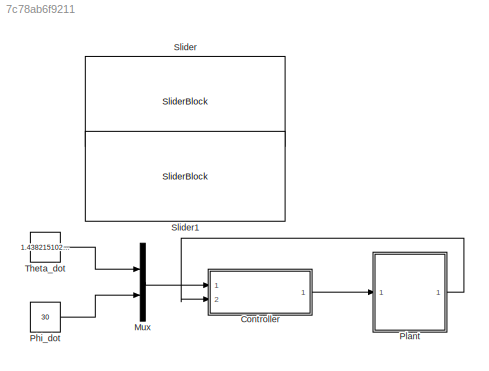
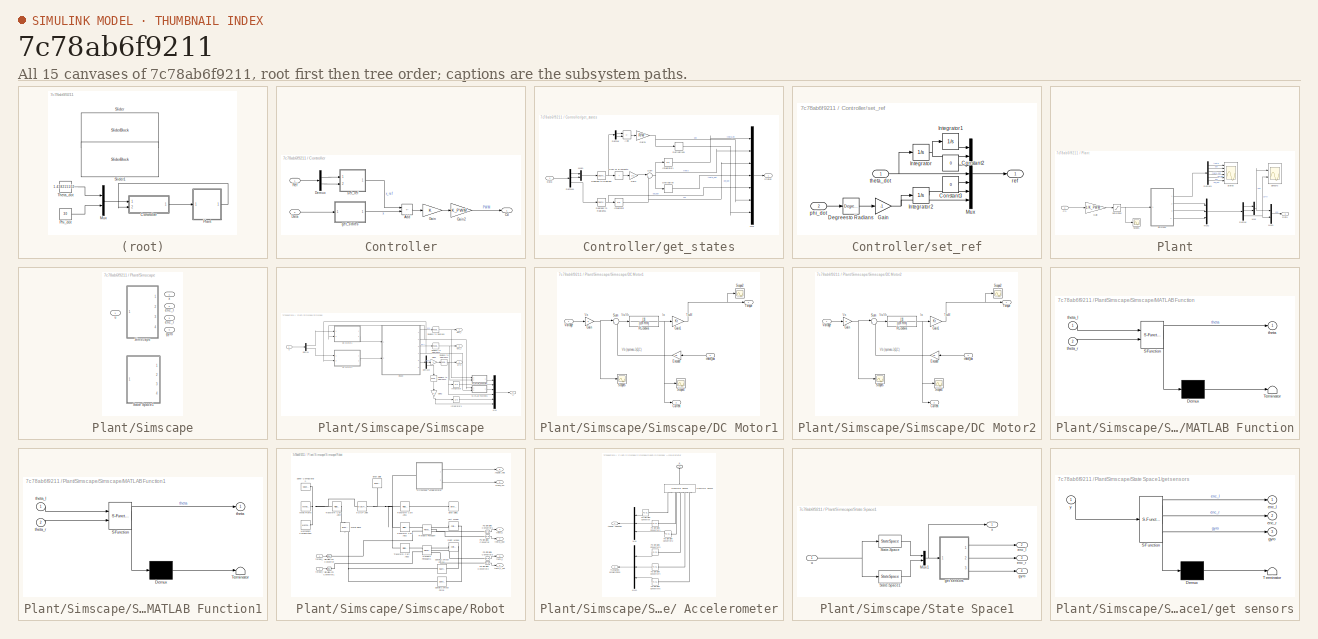
[diagram: thumbnail index - all 15 canvases of the model, root first then tree order]
MODEL slx_7c78ab6f9211
KIND model
CONFIG AbsTol = auto
CONFIG EnableMultiTasking = off
CONFIG FixedStep = 1e-3
CONFIG InitFcn = init\npreload
CONFIG MaxStep = auto
CONFIG MinStep = auto
CONFIG PreLoadFcn = preload
CONFIG RelTol = 1e-3
CONFIG SampleTimeConstraint = Unconstrained
CONFIG SolverName = ode45
CONFIG StartTime = 0.0
CONFIG StopTime = 30
BLOCK [SubSystem] Controller
  Ports = [2, 1]
  RequestExecContextInheritance = off
BLOCK [Sum] Controller/Add
  IconShape = rectangular
  Inputs = +-
  Ports = [2, 1]
BLOCK [Outport] Controller/Ctl
  VectorParamsAs1DForOutWhenUnconnected = off
BLOCK [Inport] Controller/Data
  Port = 2
BLOCK [Demux] Controller/Demux
  Outputs = 2
  Ports = [1, 2]
BLOCK [Gain] Controller/Gain
  Gain = K
  Multiplication = Matrix(K*u)
BLOCK [Gain] Controller/Gain2
  Gain = K_PWM
BLOCK [Inport] Controller/Ref
BLOCK [SubSystem] Controller/get_states
  Ports = [1, 1]
  RequestExecContextInheritance = off
BLOCK [Sum] Controller/get_states/Add
  IconShape = rectangular
  Inputs = -+
  Ports = [2, 1]
BLOCK [Inport] Controller/get_states/Data
BLOCK [Reference] Controller/get_states/Degrees to Radians  REF=simulink_extras/Transformations/Degrees to
Radians
  Ports = [1, 1]
  SourceBlock = simulink_extras/Transformations/Degrees to\nRadians
  SourceProductBaseCode = SL
  SourceType = DegreesToRadians
BLOCK [Reference] Controller/get_states/Degrees to Radians1  REF=simulink_extras/Transformations/Degrees to
Radians
  Ports = [1, 1]
  SourceBlock = simulink_extras/Transformations/Degrees to\nRadians
  SourceProductBaseCode = SL
  SourceType = DegreesToRadians
BLOCK [Demux] Controller/get_states/Demux
  Outputs = 2
  Ports = [1, 2]
BLOCK [Demux] Controller/get_states/Demux1
  Outputs = 3
  Ports = [1, 3]
BLOCK [Derivative] Controller/get_states/Derivative
BLOCK [Derivative] Controller/get_states/Derivative1
BLOCK [Gain] Controller/get_states/Gain
  Gain = 1/2
BLOCK [Gain] Controller/get_states/Gain1
  Gain = R/W
BLOCK [Integrator] Controller/get_states/Integrator
  Ports = [1, 1]
BLOCK [Integrator] Controller/get_states/Integrator1
  Ports = [1, 1]
BLOCK [Mux] Controller/get_states/Mux
  DisplayOption = bar
  Inputs = 7
  Ports = [7, 1]
BLOCK [Mux] Controller/get_states/Mux1
  DisplayOption = bar
  Inputs = 2
  Ports = [2, 1]
BLOCK [Outport] Controller/get_states/States
  VectorParamsAs1DForOutWhenUnconnected = off
BLOCK [Sum] Controller/get_states/Sum
  Inputs = |++
  Ports = [2, 1]
BLOCK [Sum] Controller/get_states/Sum of Elements
  IconShape = rectangular
  Inputs = +
  Ports = [1, 1]
BLOCK [SubSystem] Controller/set_ref
  Ports = [2, 1]
  RequestExecContextInheritance = off
BLOCK [Constant] Controller/set_ref/Constant2
  Value = 0
BLOCK [Constant] Controller/set_ref/Constant3
  Value = 0
BLOCK [Reference] Controller/set_ref/Degrees to Radians  REF=simulink_extras/Transformations/Degrees to
Radians
  Ports = [1, 1]
  SourceBlock = simulink_extras/Transformations/Degrees to\nRadians
  SourceProductBaseCode = SL
  SourceType = DegreesToRadians
BLOCK [Gain] Controller/set_ref/Gain
  Gain = -1
BLOCK [Integrator] Controller/set_ref/Integrator
  Ports = [1, 1]
BLOCK [Integrator] Controller/set_ref/Integrator1
  Ports = [1, 1]
BLOCK [Integrator] Controller/set_ref/Integrator2
  Ports = [1, 1]
BLOCK [Mux] Controller/set_ref/Mux
  DisplayOption = bar
  Inputs = 7
  Ports = [7, 1]
BLOCK [Inport] Controller/set_ref/phi_dot
  Port = 2
BLOCK [Outport] Controller/set_ref/ref
  VectorParamsAs1DForOutWhenUnconnected = off
BLOCK [Inport] Controller/set_ref/theta_dot
BLOCK [Mux] Mux
  DisplayOption = bar
  Inputs = 2
  Ports = [2, 1]
BLOCK [Constant] Phi_dot
  Value = 30
BLOCK [SubSystem] Plant
  Ports = [1, 1]
  RequestExecContextInheritance = off
BLOCK [Inport] Plant/Ctl
BLOCK [Outport] Plant/Data
BLOCK [Demux] Plant/Demux
  Outputs = 3
  Ports = [1, 3]
BLOCK [Demux] Plant/Demux1
  Outputs = 6
  Ports = [1, 6]
BLOCK [Gain] Plant/Gain
  Gain = 1/K_PWM
BLOCK [Mux] Plant/Mux
  DisplayOption = bar
  Inputs = 2
  Ports = [2, 1]
BLOCK [Mux] Plant/Mux1
  DisplayOption = bar
  Inputs = 2
  Ports = [2, 1]
BLOCK [Mux] Plant/Mux2
  DisplayOption = bar
  Inputs = 3
  Ports = [3, 1]
BLOCK [Saturate] Plant/Saturation
  LowerLimit = -80
  UpperLimit = 80
BLOCK [Scope] Plant/Scope1
  Floating = off
  NumInputPorts = 1
  Ports = [1]
  ScopeSpecificationString = Simulink.scopes.TimeScopeBlockCfg('CurrentConfiguration', extmgr.ConfigurationSet(extmgr.Configuration('Core','General UI',true),extmgr.Configuration('Core','Source UI',true),extmgr.Configuration('Sources','WiredSimulink',true,'DataLoggingVariableName','ScopeData3'),extmgr.Configuration('Visuals','Time Domain',true,'SerializedDisplays',{struct('MinYLimReal','-10.25485','MaxYLimReal','7.55341','YLa...<+1415ch>
BLOCK [Scope] Plant/Sensors
  Floating = off
  NumInputPorts = 2
  Ports = [2]
  ScopeSpecificationString = Simulink.scopes.TimeScopeBlockCfg('CurrentConfiguration', extmgr.ConfigurationSet(extmgr.Configuration('Core','General UI',true),extmgr.Configuration('Core','Source UI',true),extmgr.Configuration('Sources','WiredSimulink',true,'DataLoggingVariableName','ScopeData1'),extmgr.Configuration('Visuals','Time Domain',true,'SerializedDisplays',{struct('MinYLimReal','-8204.90971','MaxYLimReal','73844.18735...<+2010ch>
BLOCK [SubSystem] Plant/Simscape
  Ports = [1, 4]
  RequestExecContextInheritance = off
  Variant = on
  VariantControl = Choice
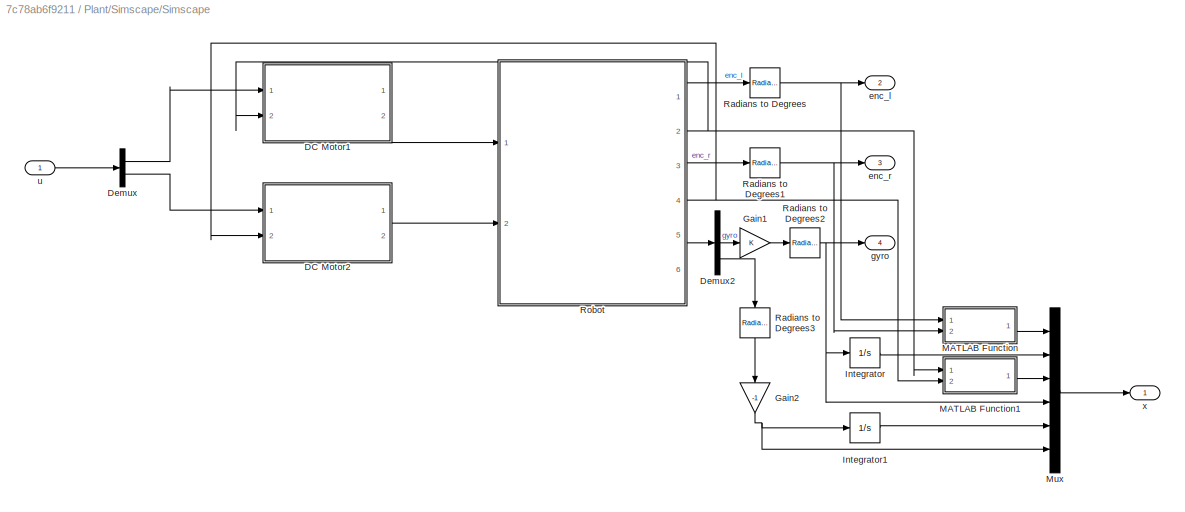
BLOCK [SubSystem] Plant/Simscape/Simscape
  Ports = [1, 4]
  RequestExecContextInheritance = off
  VariantControl = (default)
BLOCK [SubSystem] Plant/Simscape/Simscape/DC Motor1
  Ports = [2, 2]
  RequestExecContextInheritance = off
BLOCK [Outport] Plant/Simscape/Simscape/DC Motor1/Current
  Port = 2
BLOCK [Gain] Plant/Simscape/Simscape/DC Motor1/Encoder
  Gain = Kb
BLOCK [Gain] Plant/Simscape/Simscape/DC Motor1/Gain
BLOCK [Gain] Plant/Simscape/Simscape/DC Motor1/Gain1
  Gain = Kt
BLOCK [TransferFcn] Plant/Simscape/Simscape/DC Motor1/RL-схема
  Denominator = [Lm Rm]
BLOCK [Scope] Plant/Simscape/Simscape/DC Motor1/Scope2
  Floating = off
  NumInputPorts = 1
  Ports = [1]
  ScopeSpecificationString = Simulink.scopes.TimeScopeBlockCfg('CurrentConfiguration', extmgr.ConfigurationSet(extmgr.Configuration('Core','General UI',true),extmgr.Configuration('Core','Source UI',true),extmgr.Configuration('Sources','WiredSimulink',true,'DataLoggingVariableName','ScopeData1','DataLoggingSaveFormat','StructureWithTime','DataLoggingDecimation','1','DataLoggingDecimateData',true),extmgr.Configuration('Visuals'...<+1665ch>
BLOCK [Scope] Plant/Simscape/Simscape/DC Motor1/Scope4
  Floating = off
  NumInputPorts = 1
  Ports = [1]
  ScopeSpecificationString = Simulink.scopes.TimeScopeBlockCfg('CurrentConfiguration', extmgr.ConfigurationSet(extmgr.Configuration('Core','General UI',true),extmgr.Configuration('Core','Source UI',true),extmgr.Configuration('Sources','WiredSimulink',true,'DataLoggingVariableName','ScopeData5','DataLoggingSaveFormat','StructureWithTime','DataLoggingDecimation','1','DataLoggingDecimateData',true),extmgr.Configuration('Visuals'...<+1680ch>
BLOCK [Scope] Plant/Simscape/Simscape/DC Motor1/Scope5
  Floating = off
  NumInputPorts = 1
  Ports = [1]
  ScopeSpecificationString = Simulink.scopes.TimeScopeBlockCfg('CurrentConfiguration', extmgr.ConfigurationSet(extmgr.Configuration('Core','General UI',true),extmgr.Configuration('Core','Source UI',true),extmgr.Configuration('Sources','WiredSimulink',true,'DataLoggingVariableName','ScopeData6','DataLoggingSaveFormat','StructureWithTime','DataLoggingDecimation','1','DataLoggingDecimateData',true),extmgr.Configuration('Visuals'...<+878ch>
BLOCK [Sum] Plant/Simscape/Simscape/DC Motor1/Sum
  Inputs = |+-
  Ports = [2, 1]
BLOCK [Outport] Plant/Simscape/Simscape/DC Motor1/Torque
BLOCK [Inport] Plant/Simscape/Simscape/DC Motor1/Voltage
BLOCK [Inport] Plant/Simscape/Simscape/DC Motor1/theta_dot
  Port = 2
BLOCK [SubSystem] Plant/Simscape/Simscape/DC Motor2
  Ports = [2, 2]
  RequestExecContextInheritance = off
BLOCK [Outport] Plant/Simscape/Simscape/DC Motor2/Current
  Port = 2
BLOCK [Gain] Plant/Simscape/Simscape/DC Motor2/Encoder
  Gain = Kb
BLOCK [Gain] Plant/Simscape/Simscape/DC Motor2/Gain
BLOCK [Gain] Plant/Simscape/Simscape/DC Motor2/Gain1
  Gain = Kt
BLOCK [TransferFcn] Plant/Simscape/Simscape/DC Motor2/RL-схема
  Denominator = [Lm Rm]
BLOCK [Scope] Plant/Simscape/Simscape/DC Motor2/Scope2
  Floating = off
  NumInputPorts = 1
  Ports = [1]
  ScopeSpecificationString = Simulink.scopes.TimeScopeBlockCfg('CurrentConfiguration', extmgr.ConfigurationSet(extmgr.Configuration('Core','General UI',true),extmgr.Configuration('Core','Source UI',true),extmgr.Configuration('Sources','WiredSimulink',true,'DataLoggingVariableName','ScopeData1','DataLoggingSaveFormat','StructureWithTime','DataLoggingDecimation','1','DataLoggingDecimateData',true),extmgr.Configuration('Visuals'...<+1665ch>
BLOCK [Scope] Plant/Simscape/Simscape/DC Motor2/Scope4
  Floating = off
  NumInputPorts = 1
  Ports = [1]
  ScopeSpecificationString = Simulink.scopes.TimeScopeBlockCfg('CurrentConfiguration', extmgr.ConfigurationSet(extmgr.Configuration('Core','General UI',true),extmgr.Configuration('Core','Source UI',true),extmgr.Configuration('Sources','WiredSimulink',true,'DataLoggingVariableName','ScopeData5','DataLoggingSaveFormat','StructureWithTime','DataLoggingDecimation','1','DataLoggingDecimateData',true),extmgr.Configuration('Visuals'...<+1680ch>
BLOCK [Scope] Plant/Simscape/Simscape/DC Motor2/Scope5
  Floating = off
  NumInputPorts = 1
  Ports = [1]
  ScopeSpecificationString = Simulink.scopes.TimeScopeBlockCfg('CurrentConfiguration', extmgr.ConfigurationSet(extmgr.Configuration('Core','General UI',true),extmgr.Configuration('Core','Source UI',true),extmgr.Configuration('Sources','WiredSimulink',true,'DataLoggingVariableName','ScopeData6','DataLoggingSaveFormat','StructureWithTime','DataLoggingDecimation','1','DataLoggingDecimateData',true),extmgr.Configuration('Visuals'...<+878ch>
BLOCK [Sum] Plant/Simscape/Simscape/DC Motor2/Sum
  Inputs = |+-
  Ports = [2, 1]
BLOCK [Outport] Plant/Simscape/Simscape/DC Motor2/Torque
BLOCK [Inport] Plant/Simscape/Simscape/DC Motor2/Voltage
BLOCK [Inport] Plant/Simscape/Simscape/DC Motor2/theta_dot
  Port = 2
BLOCK [Demux] Plant/Simscape/Simscape/Demux
  Outputs = 2
  Ports = [1, 2]
BLOCK [Demux] Plant/Simscape/Simscape/Demux2
  Outputs = 3
  Ports = [1, 3]
BLOCK [Gain] Plant/Simscape/Simscape/Gain1
BLOCK [Gain] Plant/Simscape/Simscape/Gain2
  Gain = -1
  NameLocation = left
BLOCK [Integrator] Plant/Simscape/Simscape/Integrator
  Ports = [1, 1]
BLOCK [Integrator] Plant/Simscape/Simscape/Integrator1
  Ports = [1, 1]
BLOCK [SubSystem] Plant/Simscape/Simscape/MATLAB Function
  ErrorFcn = Stateflow.Translate.translate
  PermitHierarchicalResolution = ExplicitOnly
  Ports = [2, 1]
  RequestExecContextInheritance = off
  SFBlockType = MATLAB Function
  TreatAsAtomicUnit = on
BLOCK [Demux] Plant/Simscape/Simscape/MATLAB Function/ Demux 
  Outputs = 1
  Ports = [1, 1]
BLOCK [S-Function] Plant/Simscape/Simscape/MATLAB Function/ SFunction 
  EnableBusSupport = on
  FunctionName = sf_sfun
  PortCounts = [2 2]
  Ports = [2, 2]
  SFcnIsStateOwnerBlock = off
  SFunctionDeploymentMode = off
  Tag = Stateflow S-Function 1
BLOCK [Terminator] Plant/Simscape/Simscape/MATLAB Function/ Terminator 
BLOCK [Outport] Plant/Simscape/Simscape/MATLAB Function/theta
BLOCK [Inport] Plant/Simscape/Simscape/MATLAB Function/theta_l
BLOCK [Inport] Plant/Simscape/Simscape/MATLAB Function/theta_r
  Port = 2
BLOCK [SubSystem] Plant/Simscape/Simscape/MATLAB Function1
  ErrorFcn = Stateflow.Translate.translate
  PermitHierarchicalResolution = ExplicitOnly
  Ports = [2, 1]
  RequestExecContextInheritance = off
  SFBlockType = MATLAB Function
  TreatAsAtomicUnit = on
BLOCK [Demux] Plant/Simscape/Simscape/MATLAB Function1/ Demux 
  Outputs = 1
  Ports = [1, 1]
BLOCK [S-Function] Plant/Simscape/Simscape/MATLAB Function1/ SFunction 
  EnableBusSupport = on
  FunctionName = sf_sfun
  PortCounts = [2 2]
  Ports = [2, 2]
  SFcnIsStateOwnerBlock = off
  SFunctionDeploymentMode = off
  Tag = Stateflow S-Function 3
BLOCK [Terminator] Plant/Simscape/Simscape/MATLAB Function1/ Terminator 
BLOCK [Outport] Plant/Simscape/Simscape/MATLAB Function1/theta
BLOCK [Inport] Plant/Simscape/Simscape/MATLAB Function1/theta_l
BLOCK [Inport] Plant/Simscape/Simscape/MATLAB Function1/theta_r
  Port = 2
BLOCK [Mux] Plant/Simscape/Simscape/Mux
  DisplayOption = bar
  Inputs = 6
  Ports = [6, 1]
BLOCK [Reference] Plant/Simscape/Simscape/Radians to Degrees  REF=simulink_extras/Transformations/Radians
to Degrees
  Ports = [1, 1]
  SourceBlock = simulink_extras/Transformations/Radians\nto Degrees
  SourceProductBaseCode = SL
  SourceType = RadiansToDegrees
BLOCK [Reference] Plant/Simscape/Simscape/Radians to Degrees1  REF=simulink_extras/Transformations/Radians
to Degrees
  Ports = [1, 1]
  SourceBlock = simulink_extras/Transformations/Radians\nto Degrees
  SourceProductBaseCode = SL
  SourceType = RadiansToDegrees
BLOCK [Reference] Plant/Simscape/Simscape/Radians to Degrees2  REF=simulink_extras/Transformations/Radians
to Degrees
  Ports = [1, 1]
  SourceBlock = simulink_extras/Transformations/Radians\nto Degrees
  SourceProductBaseCode = SL
  SourceType = RadiansToDegrees
BLOCK [Reference] Plant/Simscape/Simscape/Radians to Degrees3  REF=simulink_extras/Transformations/Radians
to Degrees
  NameLocation = left
  Ports = [1, 1]
  SourceBlock = simulink_extras/Transformations/Radians\nto Degrees
  SourceProductBaseCode = SL
  SourceType = RadiansToDegrees
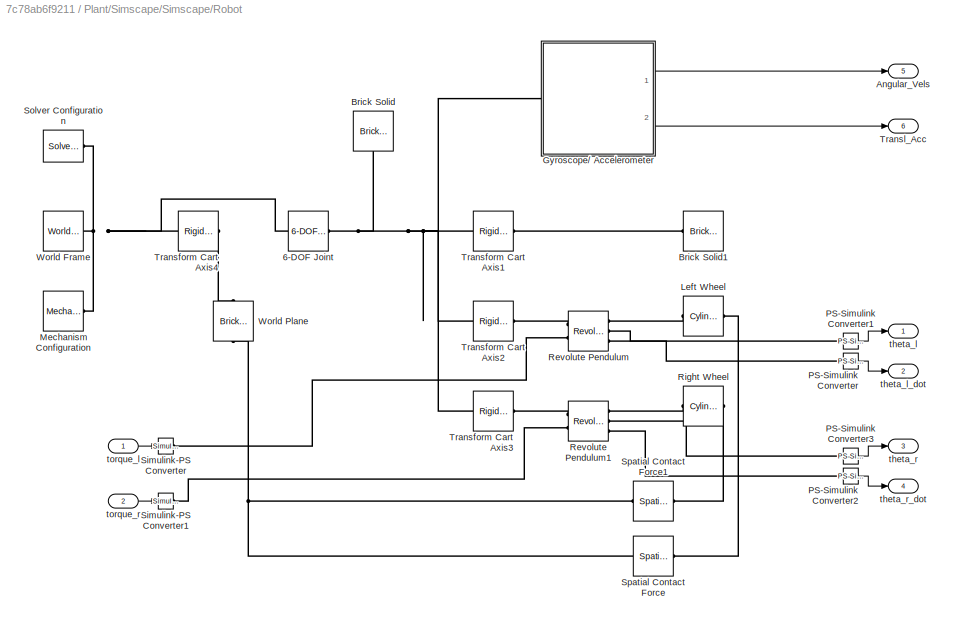
BLOCK [SubSystem] Plant/Simscape/Simscape/Robot
  Ports = [2, 6]
  RequestExecContextInheritance = off
BLOCK [Reference] Plant/Simscape/Simscape/Robot/6-DOF Joint  REF=sm_lib/Joints/6-DOF Joint
  Ports = [0, 0, 0, 0, 0, 1, 1]
  SourceBlock = sm_lib/Joints/6-DOF Joint
  SourceProductBaseCode = MS
  SourceType = 6-DOF Joint
BLOCK [Outport] Plant/Simscape/Simscape/Robot/Angular_Vels
  Port = 5
BLOCK [Reference] Plant/Simscape/Simscape/Robot/Brick Solid  REF=sm_lib/Body Elements/Brick Solid
  NameLocation = left
  Ports = [0, 0, 0, 0, 0, 0, 1]
  SourceBlock = sm_lib/Body Elements/Brick Solid
  SourceProductBaseCode = MS
  SourceType = Brick Solid
BLOCK [Reference] Plant/Simscape/Simscape/Robot/Brick Solid1  REF=sm_lib/Body Elements/Brick Solid
  NameLocation = top
  Ports = [0, 0, 0, 0, 0, 1, 1]
  SourceBlock = sm_lib/Body Elements/Brick Solid
  SourceProductBaseCode = MS
  SourceType = Brick Solid
BLOCK [SubSystem] Plant/Simscape/Simscape/Robot/Gyroscope// Accelerometer
  Ports = [0, 2, 0, 0, 0, 1]
  RequestExecContextInheritance = off
BLOCK [Outport] Plant/Simscape/Simscape/Robot/Gyroscope// Accelerometer/Angular velocities
BLOCK [PMIOPort] Plant/Simscape/Simscape/Robot/Gyroscope// Accelerometer/B
  NameLocation = right
  Side = Left
BLOCK [Mux] Plant/Simscape/Simscape/Robot/Gyroscope// Accelerometer/Mux
  DisplayOption = bar
  Inputs = 3
  NameLocation = top
  Ports = [3, 1]
BLOCK [Mux] Plant/Simscape/Simscape/Robot/Gyroscope// Accelerometer/Mux1
  DisplayOption = bar
  Inputs = 3
  NameLocation = top
  Ports = [3, 1]
BLOCK [Reference] Plant/Simscape/Simscape/Robot/Gyroscope// Accelerometer/PS-Simulink Converter  REF=nesl_utility/PS-Simulink
Converter
  Ports = [0, 1, 0, 0, 0, 1]
  SourceBlock = nesl_utility/PS-Simulink\nConverter
  SourceProductBaseCode = PW,SS
  SourceType = PS-Simulink\nConverter
BLOCK [Reference] Plant/Simscape/Simscape/Robot/Gyroscope// Accelerometer/PS-Simulink Converter1  REF=nesl_utility/PS-Simulink
Converter
  Ports = [0, 1, 0, 0, 0, 1]
  SourceBlock = nesl_utility/PS-Simulink\nConverter
  SourceProductBaseCode = PW,SS
  SourceType = PS-Simulink\nConverter
BLOCK [Reference] Plant/Simscape/Simscape/Robot/Gyroscope// Accelerometer/PS-Simulink Converter2  REF=nesl_utility/PS-Simulink
Converter
  Ports = [0, 1, 0, 0, 0, 1]
  SourceBlock = nesl_utility/PS-Simulink\nConverter
  SourceProductBaseCode = PW,SS
  SourceType = PS-Simulink\nConverter
BLOCK [Reference] Plant/Simscape/Simscape/Robot/Gyroscope// Accelerometer/PS-Simulink Converter3  REF=nesl_utility/PS-Simulink
Converter
  Ports = [0, 1, 0, 0, 0, 1]
  SourceBlock = nesl_utility/PS-Simulink\nConverter
  SourceProductBaseCode = PW,SS
  SourceType = PS-Simulink\nConverter
BLOCK [Reference] Plant/Simscape/Simscape/Robot/Gyroscope// Accelerometer/PS-Simulink Converter4  REF=nesl_utility/PS-Simulink
Converter
  Ports = [0, 1, 0, 0, 0, 1]
  SourceBlock = nesl_utility/PS-Simulink\nConverter
  SourceProductBaseCode = PW,SS
  SourceType = PS-Simulink\nConverter
BLOCK [Reference] Plant/Simscape/Simscape/Robot/Gyroscope// Accelerometer/PS-Simulink Converter5  REF=nesl_utility/PS-Simulink
Converter
  Ports = [0, 1, 0, 0, 0, 1]
  SourceBlock = nesl_utility/PS-Simulink\nConverter
  SourceProductBaseCode = PW,SS
  SourceType = PS-Simulink\nConverter
BLOCK [Reference] Plant/Simscape/Simscape/Robot/Gyroscope// Accelerometer/Transform Sensor  REF=sm_lib/Frames and
Transforms/Transform
Sensor
  NameLocation = left
  Ports = [0, 0, 0, 0, 0, 1, 7]
  SourceBlock = sm_lib/Frames and\nTransforms/Transform\nSensor
  SourceProductBaseCode = MS
  SourceType = Transform\nSensor
BLOCK [Outport] Plant/Simscape/Simscape/Robot/Gyroscope// Accelerometer/Translation accelerations
  Port = 2
BLOCK [Reference] Plant/Simscape/Simscape/Robot/Left Wheel  REF=sm_lib/Body Elements/Cylindrical Solid
  NameLocation = top
  Ports = [0, 0, 0, 0, 0, 1, 1]
  SourceBlock = sm_lib/Body Elements/Cylindrical Solid
  SourceProductBaseCode = MS
  SourceType = Cylindrical Solid
BLOCK [Reference] Plant/Simscape/Simscape/Robot/Mechanism Configuration  REF=sm_lib/Utilities/Mechanism
Configuration
  Ports = [0, 0, 0, 0, 0, 0, 1]
  SourceBlock = sm_lib/Utilities/Mechanism\nConfiguration
  SourceProductBaseCode = MS
  SourceType = Mechanism\nConfiguration
BLOCK [Reference] Plant/Simscape/Simscape/Robot/PS-Simulink Converter  REF=nesl_utility/PS-Simulink
Converter
  Ports = [0, 1, 0, 0, 0, 1]
  SourceBlock = nesl_utility/PS-Simulink\nConverter
  SourceProductBaseCode = SS,PW,VE
  SourceType = PS-Simulink\nConverter
BLOCK [Reference] Plant/Simscape/Simscape/Robot/PS-Simulink Converter1  REF=nesl_utility/PS-Simulink
Converter
  Ports = [0, 1, 0, 0, 0, 1]
  SourceBlock = nesl_utility/PS-Simulink\nConverter
  SourceProductBaseCode = SS,PW,VE
  SourceType = PS-Simulink\nConverter
BLOCK [Reference] Plant/Simscape/Simscape/Robot/PS-Simulink Converter2  REF=nesl_utility/PS-Simulink
Converter
  Ports = [0, 1, 0, 0, 0, 1]
  SourceBlock = nesl_utility/PS-Simulink\nConverter
  SourceProductBaseCode = SS,PW,VE
  SourceType = PS-Simulink\nConverter
BLOCK [Reference] Plant/Simscape/Simscape/Robot/PS-Simulink Converter3  REF=nesl_utility/PS-Simulink
Converter
  Ports = [0, 1, 0, 0, 0, 1]
  SourceBlock = nesl_utility/PS-Simulink\nConverter
  SourceProductBaseCode = SS,PW,VE
  SourceType = PS-Simulink\nConverter
BLOCK [Reference] Plant/Simscape/Simscape/Robot/Revolute Pendulum  REF=sm_lib/Joints/Revolute Joint
  Ports = [0, 0, 0, 0, 0, 2, 3]
  SourceBlock = sm_lib/Joints/Revolute Joint
  SourceProductBaseCode = MS
  SourceType = Revolute Joint
BLOCK [Reference] Plant/Simscape/Simscape/Robot/Revolute Pendulum1  REF=sm_lib/Joints/Revolute Joint
  Ports = [0, 0, 0, 0, 0, 2, 3]
  SourceBlock = sm_lib/Joints/Revolute Joint
  SourceProductBaseCode = MS
  SourceType = Revolute Joint
BLOCK [Reference] Plant/Simscape/Simscape/Robot/Right Wheel  REF=sm_lib/Body Elements/Cylindrical Solid
  NameLocation = top
  Ports = [0, 0, 0, 0, 0, 1, 1]
  SourceBlock = sm_lib/Body Elements/Cylindrical Solid
  SourceProductBaseCode = MS
  SourceType = Cylindrical Solid
BLOCK [Reference] Plant/Simscape/Simscape/Robot/Simulink-PS Converter  REF=nesl_utility/Simulink-PS
Converter
  Ports = [1, 0, 0, 0, 0, 0, 1]
  SourceBlock = nesl_utility/Simulink-PS\nConverter
  SourceProductBaseCode = SS,PW,VE
  SourceType = Simulink-PS\nConverter
BLOCK [Reference] Plant/Simscape/Simscape/Robot/Simulink-PS Converter1  REF=nesl_utility/Simulink-PS
Converter
  Ports = [1, 0, 0, 0, 0, 0, 1]
  SourceBlock = nesl_utility/Simulink-PS\nConverter
  SourceProductBaseCode = SS,PW,VE
  SourceType = Simulink-PS\nConverter
BLOCK [Reference] Plant/Simscape/Simscape/Robot/Solver Configuration  REF=nesl_utility/Solver
Configuration
  Ports = [0, 0, 0, 0, 0, 0, 1]
  SourceBlock = nesl_utility/Solver\nConfiguration
  SourceProductBaseCode = SS,PW,VE
  SourceType = Solver\nConfiguration
BLOCK [Reference] Plant/Simscape/Simscape/Robot/Spatial Contact Force  REF=sm_lib/Forces and
Torques/Spatial
Contact Force
  Ports = [0, 0, 0, 0, 0, 1, 1]
  SourceBlock = sm_lib/Forces and\nTorques/Spatial\nContact Force
  SourceProductBaseCode = MS
  SourceType = Spatial\nContact Force
BLOCK [Reference] Plant/Simscape/Simscape/Robot/Spatial Contact Force1  REF=sm_lib/Forces and
Torques/Spatial
Contact Force
  Ports = [0, 0, 0, 0, 0, 1, 1]
  SourceBlock = sm_lib/Forces and\nTorques/Spatial\nContact Force
  SourceProductBaseCode = MS
  SourceType = Spatial\nContact Force
BLOCK [Reference] Plant/Simscape/Simscape/Robot/Transform Cart Axis1  REF=sm_lib/Frames and
Transforms/Rigid
Transform
  Ports = [0, 0, 0, 0, 0, 1, 1]
  SourceBlock = sm_lib/Frames and\nTransforms/Rigid\nTransform
  SourceProductBaseCode = MS
  SourceType = Rigid\nTransform
BLOCK [Reference] Plant/Simscape/Simscape/Robot/Transform Cart Axis2  REF=sm_lib/Frames and
Transforms/Rigid
Transform
  Ports = [0, 0, 0, 0, 0, 1, 1]
  SourceBlock = sm_lib/Frames and\nTransforms/Rigid\nTransform
  SourceProductBaseCode = MS
  SourceType = Rigid\nTransform
BLOCK [Reference] Plant/Simscape/Simscape/Robot/Transform Cart Axis3  REF=sm_lib/Frames and
Transforms/Rigid
Transform
  Ports = [0, 0, 0, 0, 0, 1, 1]
  SourceBlock = sm_lib/Frames and\nTransforms/Rigid\nTransform
  SourceProductBaseCode = MS
  SourceType = Rigid\nTransform
BLOCK [Reference] Plant/Simscape/Simscape/Robot/Transform Cart Axis4  REF=sm_lib/Frames and
Transforms/Rigid
Transform
  Ports = [0, 0, 0, 0, 0, 1, 1]
  SourceBlock = sm_lib/Frames and\nTransforms/Rigid\nTransform
  SourceProductBaseCode = MS
  SourceType = Rigid\nTransform
BLOCK [Outport] Plant/Simscape/Simscape/Robot/Transl_Acc
  Port = 6
BLOCK [Reference] Plant/Simscape/Simscape/Robot/World Frame  REF=sm_lib/Frames and
Transforms/World Frame
  Ports = [0, 0, 0, 0, 0, 0, 1]
  SourceBlock = sm_lib/Frames and\nTransforms/World Frame
  SourceProductBaseCode = MS
  SourceType = World Frame
BLOCK [Reference] Plant/Simscape/Simscape/Robot/World Plane  REF=sm_lib/Body Elements/Brick Solid
  NameLocation = right
  Ports = [0, 0, 0, 0, 0, 1, 1]
  SourceBlock = sm_lib/Body Elements/Brick Solid
  SourceProductBaseCode = MS
  SourceType = Brick Solid
BLOCK [Outport] Plant/Simscape/Simscape/Robot/theta_l
BLOCK [Outport] Plant/Simscape/Simscape/Robot/theta_l_dot
  Port = 2
BLOCK [Outport] Plant/Simscape/Simscape/Robot/theta_r
  Port = 3
BLOCK [Outport] Plant/Simscape/Simscape/Robot/theta_r_dot
  Port = 4
BLOCK [Inport] Plant/Simscape/Simscape/Robot/torque_l
BLOCK [Inport] Plant/Simscape/Simscape/Robot/torque_r
  Port = 2
BLOCK [Outport] Plant/Simscape/Simscape/enc_l
  Port = 2
BLOCK [Outport] Plant/Simscape/Simscape/enc_r
  Port = 3
BLOCK [Outport] Plant/Simscape/Simscape/gyro
  Port = 4
BLOCK [Inport] Plant/Simscape/Simscape/u
BLOCK [Outport] Plant/Simscape/Simscape/x
BLOCK [SubSystem] Plant/Simscape/State Space1
  Ports = [1, 4]
  RequestExecContextInheritance = off
  VariantControl = is_simscape == 0
BLOCK [Mux] Plant/Simscape/State Space1/Mux1
  DisplayOption = bar
  Inputs = 2
  Ports = [2, 1]
BLOCK [StateSpace] Plant/Simscape/State Space1/State-Space
  A = A1
  B = B1
  C = C1
  D = D1
  InitialCondition = 0
  Ports = [1, 1]
BLOCK [StateSpace] Plant/Simscape/State Space1/State-Space1
  A = A2
  B = B2
  C = C2
  D = D2
  InitialCondition = 0
  Ports = [1, 1]
BLOCK [Outport] Plant/Simscape/State Space1/enc_l
  Port = 2
BLOCK [Outport] Plant/Simscape/State Space1/enc_r
  Port = 3
BLOCK [SubSystem] Plant/Simscape/State Space1/get sensors
  ErrorFcn = Stateflow.Translate.translate
  PermitHierarchicalResolution = ExplicitOnly
  Ports = [1, 3]
  RequestExecContextInheritance = off
  SFBlockType = MATLAB Function
  TreatAsAtomicUnit = on
BLOCK [Demux] Plant/Simscape/State Space1/get sensors/ Demux 
  Outputs = 1
  Ports = [1, 1]
BLOCK [S-Function] Plant/Simscape/State Space1/get sensors/ SFunction 
  EnableBusSupport = on
  FunctionName = sf_sfun
  Parameters = R,W
  PortCounts = [1 4]
  Ports = [1, 4]
  SFcnIsStateOwnerBlock = off
  SFunctionDeploymentMode = off
  Tag = Stateflow S-Function 5
BLOCK [Terminator] Plant/Simscape/State Space1/get sensors/ Terminator 
BLOCK [Outport] Plant/Simscape/State Space1/get sensors/enc_l
  VectorParamsAs1DForOutWhenUnconnected = off
BLOCK [Outport] Plant/Simscape/State Space1/get sensors/enc_r
  Port = 2
  VectorParamsAs1DForOutWhenUnconnected = off
BLOCK [Outport] Plant/Simscape/State Space1/get sensors/gyro
  Port = 3
  VectorParamsAs1DForOutWhenUnconnected = off
BLOCK [Inport] Plant/Simscape/State Space1/get sensors/y
BLOCK [Outport] Plant/Simscape/State Space1/gyro
  Port = 4
BLOCK [Inport] Plant/Simscape/State Space1/u
BLOCK [Outport] Plant/Simscape/State Space1/x
BLOCK [Outport] Plant/Simscape/enc_l
  Port = 2
BLOCK [Outport] Plant/Simscape/enc_r
  Port = 3
BLOCK [Outport] Plant/Simscape/gyro
  Port = 4
BLOCK [Inport] Plant/Simscape/u
BLOCK [Outport] Plant/Simscape/x
BLOCK [Scope] Plant/States
  Floating = off
  NumInputPorts = 6
  Ports = [6]
  ScopeSpecificationString = Simulink.scopes.TimeScopeBlockCfg('CurrentConfiguration', extmgr.ConfigurationSet(extmgr.Configuration('Core','General UI',true),extmgr.Configuration('Core','Source UI',true),extmgr.Configuration('Sources','WiredSimulink',true),extmgr.Configuration('Visuals','Time Domain',true,'SerializedDisplays',{struct('MinYLimReal','-324.1723','MaxYLimReal','2863.51713','YLabelReal','','MinYLimMag',' 0.00000',...<+5181ch>
BLOCK [SliderBlock] Slider
  ScaleMax = 4
  ScaleMin = -4
BLOCK [SliderBlock] Slider1
  ScaleMax = 5
  ScaleMin = -5
BLOCK [Constant] Theta_dot
  Value = 1.438215102974828
ANNOTATION Plant/Simscape/Simscape/DC Motor1: Ia
ANNOTATION Plant/Simscape/Simscape/DC Motor1: TauM
ANNOTATION Plant/Simscape/Simscape/DC Motor1: Va
ANNOTATION Plant/Simscape/Simscape/DC Motor1: Va-Vb
ANNOTATION Plant/Simscape/Simscape/DC Motor1: Vb (противо-ЭДС)
ANNOTATION Plant/Simscape/Simscape/DC Motor2: Ia
ANNOTATION Plant/Simscape/Simscape/DC Motor2: TauM
ANNOTATION Plant/Simscape/Simscape/DC Motor2: Va
ANNOTATION Plant/Simscape/Simscape/DC Motor2: Va-Vb
ANNOTATION Plant/Simscape/Simscape/DC Motor2: Vb (противо-ЭДС)
LINE Controller/Add:1 -> Controller/Gain:1
LINE Controller/Data:1 -> Controller/get_states:1
LINE Controller/Demux:1 -> Controller/set_ref:1
LINE Controller/Demux:2 -> Controller/set_ref:2
LINE Controller/Gain2:1 -> Controller/Ctl:1
LINE Controller/Gain:1 -> Controller/Gain2:1
LINE Controller/Ref:1 -> Controller/Demux:1
LINE Controller/get_states/Add:1 -> Controller/get_states/Gain1:1
LINE Controller/get_states/Data:1 -> Controller/get_states/Demux1:1
NET Controller/get_states/Degrees to Radians1:1 -> Controller/get_states/Integrator:1, Controller/get_states/Mux:5
NET Controller/get_states/Degrees to Radians:1 -> Controller/get_states/Demux:1, Controller/get_states/Sum of Elements:1
LINE Controller/get_states/Demux1:1 -> Controller/get_states/Mux1:1
LINE Controller/get_states/Demux1:2 -> Controller/get_states/Mux1:2
LINE Controller/get_states/Demux1:3 -> Controller/get_states/Degrees to Radians1:1
LINE Controller/get_states/Demux:1 -> Controller/get_states/Add:1
LINE Controller/get_states/Demux:2 -> Controller/get_states/Add:2
LINE Controller/get_states/Derivative1:1 -> Controller/get_states/Mux:7
LINE Controller/get_states/Derivative:1 -> Controller/get_states/Mux:4
NET Controller/get_states/Gain1:1 -> Controller/get_states/Derivative1:1, Controller/get_states/Mux:6
LINE Controller/get_states/Gain:1 -> Controller/get_states/Sum:1
LINE Controller/get_states/Integrator1:1 -> Controller/get_states/Mux:1
NET Controller/get_states/Integrator:1 -> Controller/get_states/Mux:3, Controller/get_states/Sum:2
LINE Controller/get_states/Mux1:1 -> Controller/get_states/Degrees to Radians:1
LINE Controller/get_states/Mux:1 -> Controller/get_states/States:1
LINE Controller/get_states/Sum of Elements:1 -> Controller/get_states/Gain:1
NET Controller/get_states/Sum:1 -> Controller/get_states/Derivative:1, Controller/get_states/Integrator1:1, Controller/get_states/Mux:2
LINE Controller/get_states:1 -> Controller/Add:2
LINE Controller/set_ref/Constant2:1 -> Controller/set_ref/Mux:3
LINE Controller/set_ref/Constant3:1 -> Controller/set_ref/Mux:5
LINE Controller/set_ref/Degrees to Radians:1 -> Controller/set_ref/Gain:1
NET Controller/set_ref/Gain:1 -> Controller/set_ref/Integrator2:1, Controller/set_ref/Mux:7
LINE Controller/set_ref/Integrator1:1 -> Controller/set_ref/Mux:1
LINE Controller/set_ref/Integrator2:1 -> Controller/set_ref/Mux:6
NET Controller/set_ref/Integrator:1 -> Controller/set_ref/Integrator1:1, Controller/set_ref/Mux:2
LINE Controller/set_ref/Mux:1 -> Controller/set_ref/ref:1
LINE Controller/set_ref/phi_dot:1 -> Controller/set_ref/Degrees to Radians:1
NET Controller/set_ref/theta_dot:1 -> Controller/set_ref/Integrator:1, Controller/set_ref/Mux:4
LINE Controller/set_ref:1 -> Controller/Add:1
LINE Controller:1 -> Plant:1
LINE Mux:1 -> Controller:1
LINE Phi_dot:1 -> Mux:2
LINE Plant/Ctl:1 -> Plant/Gain:1
LINE Plant/Demux1:1 -> Plant/States:1
LINE Plant/Demux1:2 -> Plant/States:2
LINE Plant/Demux1:3 -> Plant/States:3
LINE Plant/Demux1:4 -> Plant/States:4
LINE Plant/Demux1:5 -> Plant/States:5
LINE Plant/Demux1:6 -> Plant/States:6
LINE Plant/Demux:1 -> Plant/Mux:1
LINE Plant/Demux:2 -> Plant/Mux:2
NET Plant/Demux:3 -> Plant/Mux1:2, Plant/Sensors:2
LINE Plant/Gain:1 -> Plant/Saturation:1
LINE Plant/Mux1:1 -> Plant/Data:1
LINE Plant/Mux2:1 -> Plant/Demux:1
NET Plant/Mux:1 -> Plant/Mux1:1, Plant/Sensors:1
NET Plant/Saturation:1 -> Plant/Scope1:1, Plant/Simscape:1
LINE Plant/Simscape/Simscape/DC Motor1/Encoder:1 -> Plant/Simscape/Simscape/DC Motor1/Sum:2
NET Plant/Simscape/Simscape/DC Motor1/Gain1:1 -> Plant/Simscape/Simscape/DC Motor1/Scope2:1, Plant/Simscape/Simscape/DC Motor1/Torque:1
NET Plant/Simscape/Simscape/DC Motor1/Gain:1 -> Plant/Simscape/Simscape/DC Motor1/Scope5:1, Plant/Simscape/Simscape/DC Motor1/Sum:1
NET Plant/Simscape/Simscape/DC Motor1/RL-схема:1 -> Plant/Simscape/Simscape/DC Motor1/Current:1, Plant/Simscape/Simscape/DC Motor1/Gain1:1, Plant/Simscape/Simscape/DC Motor1/Scope4:1
LINE Plant/Simscape/Simscape/DC Motor1/Sum:1 -> Plant/Simscape/Simscape/DC Motor1/RL-схема:1
LINE Plant/Simscape/Simscape/DC Motor1/Voltage:1 -> Plant/Simscape/Simscape/DC Motor1/Gain:1
LINE Plant/Simscape/Simscape/DC Motor1/theta_dot:1 -> Plant/Simscape/Simscape/DC Motor1/Encoder:1
LINE Plant/Simscape/Simscape/DC Motor1:2 -> Plant/Simscape/Simscape/Robot:1
LINE Plant/Simscape/Simscape/DC Motor2/Encoder:1 -> Plant/Simscape/Simscape/DC Motor2/Sum:2
NET Plant/Simscape/Simscape/DC Motor2/Gain1:1 -> Plant/Simscape/Simscape/DC Motor2/Scope2:1, Plant/Simscape/Simscape/DC Motor2/Torque:1
NET Plant/Simscape/Simscape/DC Motor2/Gain:1 -> Plant/Simscape/Simscape/DC Motor2/Scope5:1, Plant/Simscape/Simscape/DC Motor2/Sum:1
NET Plant/Simscape/Simscape/DC Motor2/RL-схема:1 -> Plant/Simscape/Simscape/DC Motor2/Current:1, Plant/Simscape/Simscape/DC Motor2/Gain1:1, Plant/Simscape/Simscape/DC Motor2/Scope4:1
LINE Plant/Simscape/Simscape/DC Motor2/Sum:1 -> Plant/Simscape/Simscape/DC Motor2/RL-схема:1
LINE Plant/Simscape/Simscape/DC Motor2/Voltage:1 -> Plant/Simscape/Simscape/DC Motor2/Gain:1
LINE Plant/Simscape/Simscape/DC Motor2/theta_dot:1 -> Plant/Simscape/Simscape/DC Motor2/Encoder:1
LINE Plant/Simscape/Simscape/DC Motor2:2 -> Plant/Simscape/Simscape/Robot:2
LINE Plant/Simscape/Simscape/Demux2:2 -> Plant/Simscape/Simscape/Gain1:1
LINE Plant/Simscape/Simscape/Demux2:3 -> Plant/Simscape/Simscape/Radians to Degrees3:1
LINE Plant/Simscape/Simscape/Demux:1 -> Plant/Simscape/Simscape/DC Motor1:1
LINE Plant/Simscape/Simscape/Demux:2 -> Plant/Simscape/Simscape/DC Motor2:1
LINE Plant/Simscape/Simscape/Gain1:1 -> Plant/Simscape/Simscape/Radians to Degrees2:1
NET Plant/Simscape/Simscape/Gain2:1 -> Plant/Simscape/Simscape/Integrator1:1, Plant/Simscape/Simscape/Mux:6
LINE Plant/Simscape/Simscape/Integrator1:1 -> Plant/Simscape/Simscape/Mux:5
LINE Plant/Simscape/Simscape/Integrator:1 -> Plant/Simscape/Simscape/Mux:2
LINE Plant/Simscape/Simscape/MATLAB Function1:1 -> Plant/Simscape/Simscape/Mux:3
LINE Plant/Simscape/Simscape/MATLAB Function:1 -> Plant/Simscape/Simscape/Mux:1
LINE Plant/Simscape/Simscape/Mux:1 -> Plant/Simscape/Simscape/x:1
NET Plant/Simscape/Simscape/Radians to Degrees1:1 -> Plant/Simscape/Simscape/MATLAB Function:2, Plant/Simscape/Simscape/enc_r:1
NET Plant/Simscape/Simscape/Radians to Degrees2:1 -> Plant/Simscape/Simscape/Integrator:1, Plant/Simscape/Simscape/Mux:4, Plant/Simscape/Simscape/gyro:1
LINE Plant/Simscape/Simscape/Radians to Degrees3:1 -> Plant/Simscape/Simscape/Gain2:1
NET Plant/Simscape/Simscape/Radians to Degrees:1 -> Plant/Simscape/Simscape/MATLAB Function:1, Plant/Simscape/Simscape/enc_l:1
LINE Plant/Simscape/Simscape/Robot/Gyroscope// Accelerometer/Mux1:1 -> Plant/Simscape/Simscape/Robot/Gyroscope// Accelerometer/Translation accelerations:1
LINE Plant/Simscape/Simscape/Robot/Gyroscope// Accelerometer/Mux:1 -> Plant/Simscape/Simscape/Robot/Gyroscope// Accelerometer/Angular velocities:1
LINE Plant/Simscape/Simscape/Robot/Gyroscope// Accelerometer/PS-Simulink Converter1:1 -> Plant/Simscape/Simscape/Robot/Gyroscope// Accelerometer/Mux:2
LINE Plant/Simscape/Simscape/Robot/Gyroscope// Accelerometer/PS-Simulink Converter2:1 -> Plant/Simscape/Simscape/Robot/Gyroscope// Accelerometer/Mux:3
LINE Plant/Simscape/Simscape/Robot/Gyroscope// Accelerometer/PS-Simulink Converter3:1 -> Plant/Simscape/Simscape/Robot/Gyroscope// Accelerometer/Mux1:1
LINE Plant/Simscape/Simscape/Robot/Gyroscope// Accelerometer/PS-Simulink Converter4:1 -> Plant/Simscape/Simscape/Robot/Gyroscope// Accelerometer/Mux1:2
LINE Plant/Simscape/Simscape/Robot/Gyroscope// Accelerometer/PS-Simulink Converter5:1 -> Plant/Simscape/Simscape/Robot/Gyroscope// Accelerometer/Mux1:3
LINE Plant/Simscape/Simscape/Robot/Gyroscope// Accelerometer/PS-Simulink Converter:1 -> Plant/Simscape/Simscape/Robot/Gyroscope// Accelerometer/Mux:1
LINE Plant/Simscape/Simscape/Robot/Gyroscope// Accelerometer:1 -> Plant/Simscape/Simscape/Robot/Angular_Vels:1
LINE Plant/Simscape/Simscape/Robot/Gyroscope// Accelerometer:2 -> Plant/Simscape/Simscape/Robot/Transl_Acc:1
LINE Plant/Simscape/Simscape/Robot/PS-Simulink Converter1:1 -> Plant/Simscape/Simscape/Robot/theta_l:1
LINE Plant/Simscape/Simscape/Robot/PS-Simulink Converter2:1 -> Plant/Simscape/Simscape/Robot/theta_r_dot:1
LINE Plant/Simscape/Simscape/Robot/PS-Simulink Converter3:1 -> Plant/Simscape/Simscape/Robot/theta_r:1
LINE Plant/Simscape/Simscape/Robot/PS-Simulink Converter:1 -> Plant/Simscape/Simscape/Robot/theta_l_dot:1
LINE Plant/Simscape/Simscape/Robot/torque_l:1 -> Plant/Simscape/Simscape/Robot/Simulink-PS Converter:1
LINE Plant/Simscape/Simscape/Robot/torque_r:1 -> Plant/Simscape/Simscape/Robot/Simulink-PS Converter1:1
LINE Plant/Simscape/Simscape/Robot:1 -> Plant/Simscape/Simscape/Radians to Degrees:1
NET Plant/Simscape/Simscape/Robot:2 -> Plant/Simscape/Simscape/DC Motor1:2, Plant/Simscape/Simscape/MATLAB Function1:1
LINE Plant/Simscape/Simscape/Robot:3 -> Plant/Simscape/Simscape/Radians to Degrees1:1
NET Plant/Simscape/Simscape/Robot:4 -> Plant/Simscape/Simscape/DC Motor2:2, Plant/Simscape/Simscape/MATLAB Function1:2
LINE Plant/Simscape/Simscape/Robot:5 -> Plant/Simscape/Simscape/Demux2:1
LINE Plant/Simscape/Simscape/u:1 -> Plant/Simscape/Simscape/Demux:1
NET Plant/Simscape/State Space1/Mux1:1 -> Plant/Simscape/State Space1/get sensors:1, Plant/Simscape/State Space1/x:1
LINE Plant/Simscape/State Space1/State-Space1:1 -> Plant/Simscape/State Space1/Mux1:2
LINE Plant/Simscape/State Space1/State-Space:1 -> Plant/Simscape/State Space1/Mux1:1
LINE Plant/Simscape/State Space1/get sensors:1 -> Plant/Simscape/State Space1/enc_l:1
LINE Plant/Simscape/State Space1/get sensors:2 -> Plant/Simscape/State Space1/enc_r:1
LINE Plant/Simscape/State Space1/get sensors:3 -> Plant/Simscape/State Space1/gyro:1
NET Plant/Simscape/State Space1/u:1 -> Plant/Simscape/State Space1/State-Space1:1, Plant/Simscape/State Space1/State-Space:1
LINE Plant/Simscape:1 -> Plant/Demux1:1
LINE Plant/Simscape:2 -> Plant/Mux2:1
LINE Plant/Simscape:3 -> Plant/Mux2:2
LINE Plant/Simscape:4 -> Plant/Mux2:3
LINE Plant:1 -> Controller:2
LINE Theta_dot:1 -> Mux:1
PNET net1: Plant/Simscape/Simscape/Robot/6-DOF Joint:LConn1 -- Plant/Simscape/Simscape/Robot/Mechanism Configuration:RConn1 -- Plant/Simscape/Simscape/Robot/Solver Configuration:RConn1 -- Plant/Simscape/Simscape/Robot/Transform Cart Axis4:LConn1 -- Plant/Simscape/Simscape/Robot/World Frame:RConn1
PNET net2: Plant/Simscape/Simscape/Robot/6-DOF Joint:RConn1 -- Plant/Simscape/Simscape/Robot/Brick Solid:RConn1 -- Plant/Simscape/Simscape/Robot/Gyroscope// Accelerometer:LConn1 -- Plant/Simscape/Simscape/Robot/Transform Cart Axis1:LConn1 -- Plant/Simscape/Simscape/Robot/Transform Cart Axis2:LConn1 -- Plant/Simscape/Simscape/Robot/Transform Cart Axis3:LConn1
PLINE Plant/Simscape/Simscape/Robot/Brick Solid1:RConn1 -- Plant/Simscape/Simscape/Robot/Transform Cart Axis1:RConn1
PLINE Plant/Simscape/Simscape/Robot/Gyroscope// Accelerometer/B:RConn1 -- Plant/Simscape/Simscape/Robot/Gyroscope// Accelerometer/Transform Sensor:LConn1
PLINE Plant/Simscape/Simscape/Robot/Gyroscope// Accelerometer/PS-Simulink Converter1:LConn1 -- Plant/Simscape/Simscape/Robot/Gyroscope// Accelerometer/Transform Sensor:RConn3
PLINE Plant/Simscape/Simscape/Robot/Gyroscope// Accelerometer/PS-Simulink Converter2:LConn1 -- Plant/Simscape/Simscape/Robot/Gyroscope// Accelerometer/Transform Sensor:RConn4
PLINE Plant/Simscape/Simscape/Robot/Gyroscope// Accelerometer/PS-Simulink Converter3:LConn1 -- Plant/Simscape/Simscape/Robot/Gyroscope// Accelerometer/Transform Sensor:RConn5
PLINE Plant/Simscape/Simscape/Robot/Gyroscope// Accelerometer/PS-Simulink Converter4:LConn1 -- Plant/Simscape/Simscape/Robot/Gyroscope// Accelerometer/Transform Sensor:RConn6
PLINE Plant/Simscape/Simscape/Robot/Gyroscope// Accelerometer/PS-Simulink Converter5:LConn1 -- Plant/Simscape/Simscape/Robot/Gyroscope// Accelerometer/Transform Sensor:RConn7
PLINE Plant/Simscape/Simscape/Robot/Gyroscope// Accelerometer/PS-Simulink Converter:LConn1 -- Plant/Simscape/Simscape/Robot/Gyroscope// Accelerometer/Transform Sensor:RConn2
PLINE Plant/Simscape/Simscape/Robot/Left Wheel:LConn1 -- Plant/Simscape/Simscape/Robot/Spatial Contact Force:RConn1
PLINE Plant/Simscape/Simscape/Robot/Left Wheel:RConn1 -- Plant/Simscape/Simscape/Robot/Revolute Pendulum:RConn1
PLINE Plant/Simscape/Simscape/Robot/PS-Simulink Converter1:LConn1 -- Plant/Simscape/Simscape/Robot/Revolute Pendulum:RConn2
PLINE Plant/Simscape/Simscape/Robot/PS-Simulink Converter2:LConn1 -- Plant/Simscape/Simscape/Robot/Revolute Pendulum1:RConn3
PLINE Plant/Simscape/Simscape/Robot/PS-Simulink Converter3:LConn1 -- Plant/Simscape/Simscape/Robot/Revolute Pendulum1:RConn2
PLINE Plant/Simscape/Simscape/Robot/PS-Simulink Converter:LConn1 -- Plant/Simscape/Simscape/Robot/Revolute Pendulum:RConn3
PLINE Plant/Simscape/Simscape/Robot/Revolute Pendulum1:LConn1 -- Plant/Simscape/Simscape/Robot/Transform Cart Axis3:RConn1
PLINE Plant/Simscape/Simscape/Robot/Revolute Pendulum1:LConn2 -- Plant/Simscape/Simscape/Robot/Simulink-PS Converter1:RConn1
PLINE Plant/Simscape/Simscape/Robot/Revolute Pendulum1:RConn1 -- Plant/Simscape/Simscape/Robot/Right Wheel:RConn1
PLINE Plant/Simscape/Simscape/Robot/Revolute Pendulum:LConn1 -- Plant/Simscape/Simscape/Robot/Transform Cart Axis2:RConn1
PLINE Plant/Simscape/Simscape/Robot/Revolute Pendulum:LConn2 -- Plant/Simscape/Simscape/Robot/Simulink-PS Converter:RConn1
PLINE Plant/Simscape/Simscape/Robot/Right Wheel:LConn1 -- Plant/Simscape/Simscape/Robot/Spatial Contact Force1:RConn1
PNET net3: Plant/Simscape/Simscape/Robot/Spatial Contact Force1:LConn1 -- Plant/Simscape/Simscape/Robot/Spatial Contact Force:LConn1 -- Plant/Simscape/Simscape/Robot/World Plane:LConn1
PLINE Plant/Simscape/Simscape/Robot/Transform Cart Axis4:RConn1 -- Plant/Simscape/Simscape/Robot/World Plane:RConn1
note: NET lines group one-source signal fan-out (src -> all destinations, sorted); 1:1 wires keep LINE; PNET lines group multi-terminal physical nets as a canonical sorted terminal list (undirected conserving connections); 2-terminal nets keep the pairwise PLINE form
CHART Plant/Simscape/Simscape/MATLAB Function states=1 transitions=1
  STATE_LABEL 'eML_blk_kernel()'
  STATE_LABEL 'SCRIPT:\nfunction theta = fcn(theta_l, theta_r)\n\ntheta = (theta_l + theta_r)/2;\n'
CHART Plant/Simscape/Simscape/MATLAB Function1 states=1 transitions=1
  STATE_LABEL 'eML_blk_kernel()'
  STATE_LABEL 'SCRIPT:\nfunction theta = fcn(theta_l, theta_r)\n\ntheta = (theta_l + theta_r)/2;\n'
CHART Plant/Simscape/State Space1/get sensors states=1 transitions=1
  STATE_LABEL 'eML_blk_kernel()'
  STATE_LABEL 'SCRIPT:\nfunction [enc_l, enc_r, gyro] = sensors(y, R, W)\nenc_l = rad2deg(y(1) - W/R/2 * y(5) - y(2));\nenc_r = rad2deg(y(1) + W/R/2 * y(5) - y(2));\ngyro  = rad2deg(y(4));'
CHART  states=0 transitions=0
CHART  states=0 transitions=0
CHART  states=0 transitions=0
